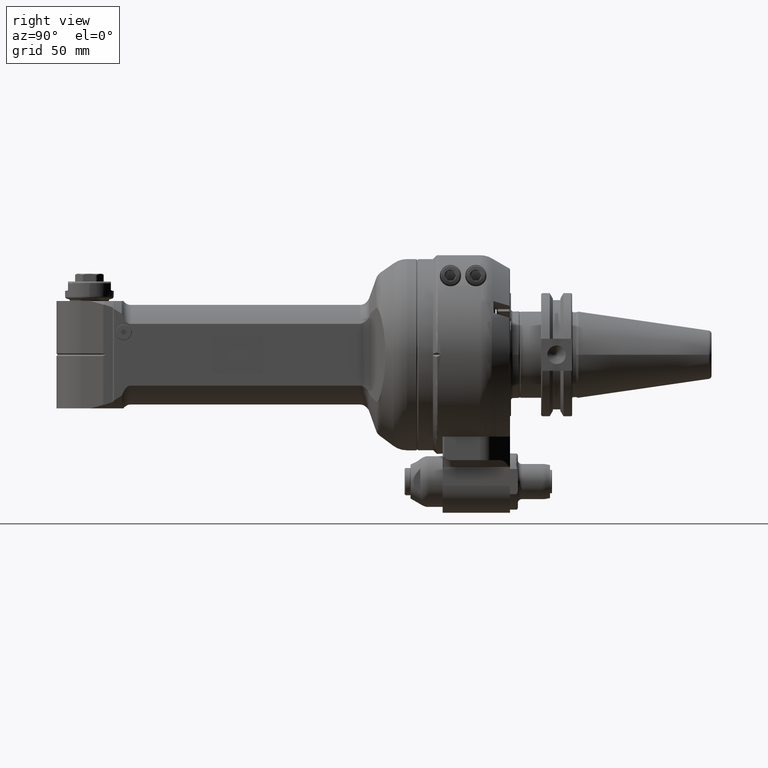
[diagram: clean part render]
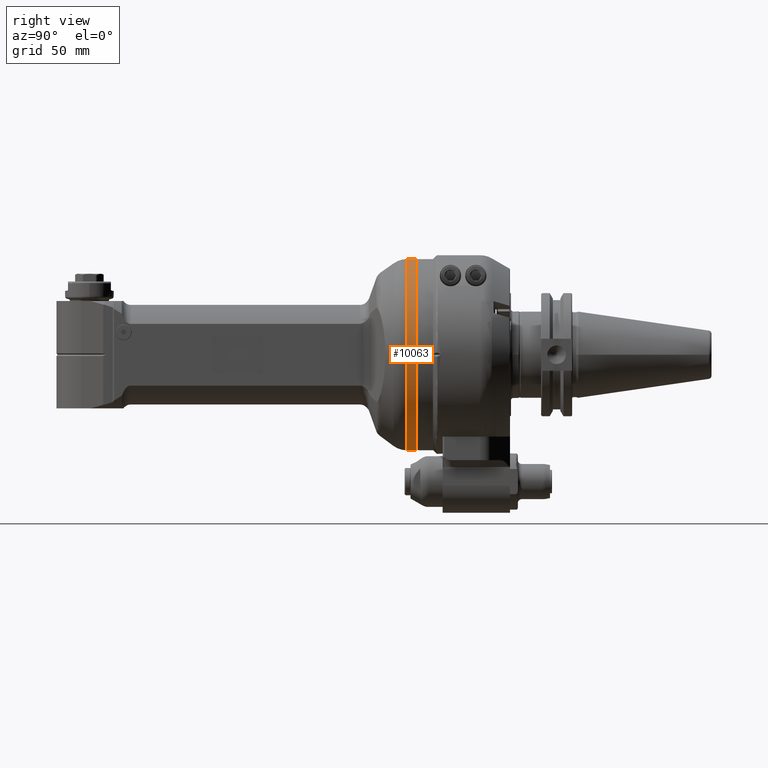
[diagram: same view with one face highlighted and labeled with its STEP entity id]
A machine part, right view. The second image highlights one B-rep face of the part: STEP entity #10063.
In plain terms, the highlighted cylindrical surface (bore or boss wall) has radius 49 mm, axis along (0, 1, 0).
Its self-contained STEP definition (entity closure, byte-faithful):
#856=FACE_OUTER_BOUND('',#1483,.T.);
#1483=EDGE_LOOP('',(#6808,#6809,#6810,#6811,#6812));
#2205=LINE('',#15667,#2881);
#2881=VECTOR('',#12192,49.);
#3562=CIRCLE('',#10836,49.);
#3564=CIRCLE('',#10839,49.);
#3565=CIRCLE('',#10840,49.);
#4206=VERTEX_POINT('',#15659);
#4207=VERTEX_POINT('',#15663);
#4208=VERTEX_POINT('',#15664);
#5222=EDGE_CURVE('',#4206,#4206,#3562,.T.);
#5224=EDGE_CURVE('',#4207,#4208,#3564,.T.);
#5225=EDGE_CURVE('',#4208,#4207,#3565,.T.);
#5226=EDGE_CURVE('',#4208,#4206,#2205,.T.);
#6808=ORIENTED_EDGE('',*,*,#5224,.F.);
#6809=ORIENTED_EDGE('',*,*,#5225,.F.);
#6810=ORIENTED_EDGE('',*,*,#5226,.T.);
#6811=ORIENTED_EDGE('',*,*,#5222,.F.);
#6812=ORIENTED_EDGE('',*,*,#5226,.F.);
#9695=CYLINDRICAL_SURFACE('',#10838,49.);
#10063=ADVANCED_FACE('',(#856),#9695,.T.);
#10836=AXIS2_PLACEMENT_3D('',#15660,#12182,#12183);
#10838=AXIS2_PLACEMENT_3D('',#15662,#12186,#12187);
#10839=AXIS2_PLACEMENT_3D('',#15665,#12188,#12189);
#10840=AXIS2_PLACEMENT_3D('',#15666,#12190,#12191);
#12182=DIRECTION('center_axis',(1.,0.,0.));
#12183=DIRECTION('ref_axis',(0.,-1.,0.));
#12186=DIRECTION('center_axis',(-1.,0.,0.));
#12187=DIRECTION('ref_axis',(0.,1.,0.));
#12188=DIRECTION('center_axis',(-1.,0.,0.));
#12189=DIRECTION('ref_axis',(0.,0.942641491092172,-0.33380685923379));
#12190=DIRECTION('center_axis',(-1.,0.,0.));
#12191=DIRECTION('ref_axis',(0.,0.942641491092172,-0.33380685923379));
#12192=DIRECTION('',(1.,0.,0.));
#15659=CARTESIAN_POINT('',(44.21641453345,-49.,6.00076931582203E-15));
#15660=CARTESIAN_POINT('Origin',(44.21641453345,0.,0.));
#15662=CARTESIAN_POINT('Origin',(90.60163605758,0.,0.));
#15663=CARTESIAN_POINT('',(39.5,49.,6.00076931582203E-15));
#15664=CARTESIAN_POINT('',(39.5,-49.,6.00076931582203E-15));
#15665=CARTESIAN_POINT('Origin',(39.5,0.,0.));
#15666=CARTESIAN_POINT('Origin',(39.5,0.,0.));
#15667=CARTESIAN_POINT('',(90.60163605758,-49.,6.00076931582203E-15));